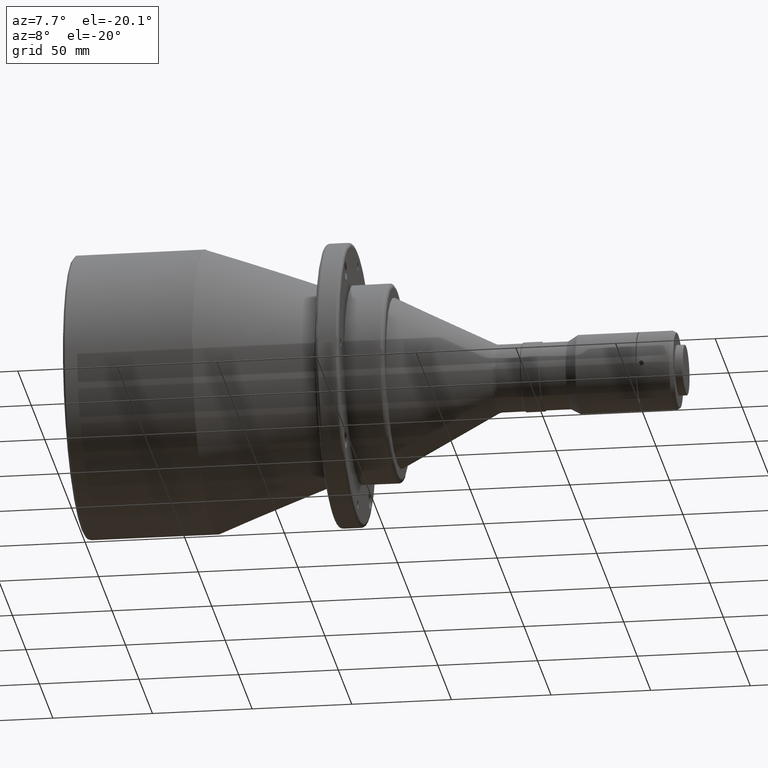
[diagram: clean part render]
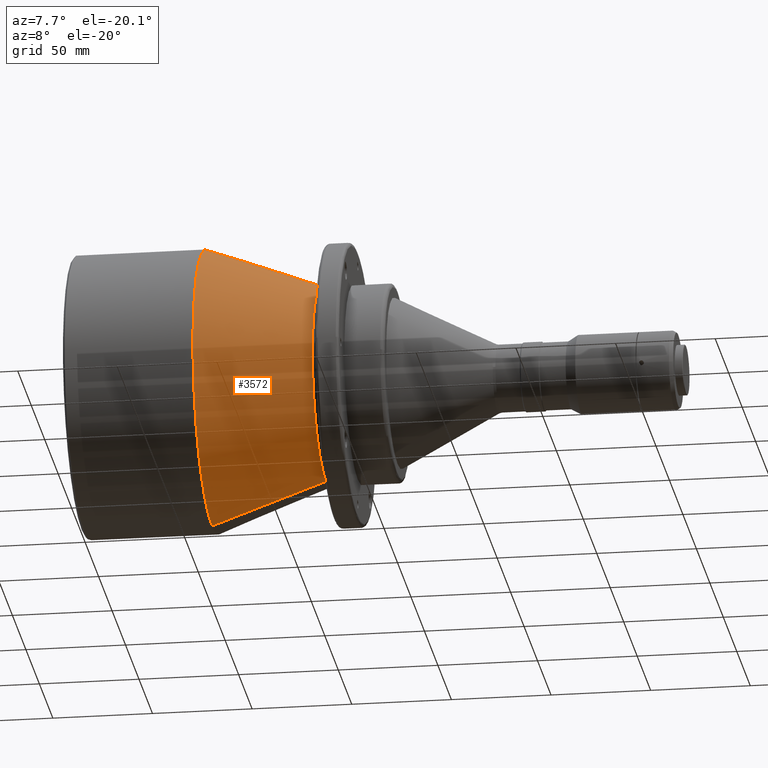
[diagram: same view with one face highlighted and labeled with its STEP entity id]
A machine part, auxiliary view. The second image highlights one B-rep face of the part: STEP entity #3572.
In plain terms, the highlighted conical surface has half-angle 20 deg.
Its self-contained STEP definition (entity closure, byte-faithful):
#125 = DIRECTION ( 'NONE',  ( 0.0000000000000000000, 0.0000000000000000000, 1.000000000000000000 ) ) ;
#211 = CIRCLE ( 'NONE', #3698, 50.14671139235364400 ) ;
#226 = DIRECTION ( 'NONE',  ( 1.000000000000000000, -0.0000000000000000000, -0.0000000000000000000 ) ) ;
#268 = VECTOR ( 'NONE', #1292, 1000.000000000000100 ) ;
#300 = CARTESIAN_POINT ( 'NONE',  ( -29.17606042959911200, -50.14671139256908100, -1.500951723251070900E-009 ) ) ;
#366 = AXIS2_PLACEMENT_3D ( 'NONE', #870, #226, #4215 ) ;
#402 = ORIENTED_EDGE ( 'NONE', *, *, #3135, .T. ) ;
#409 = CARTESIAN_POINT ( 'NONE',  ( -29.17606043000009600, 6.141200959520360200E-015, -50.14671139300003900 ) ) ;
#422 = VERTEX_POINT ( 'NONE', #1890 ) ;
#438 = LINE ( 'NONE', #1911, #268 ) ;
#629 = EDGE_CURVE ( 'NONE', #3713, #1629, #3438, .T. ) ;
#634 = VERTEX_POINT ( 'NONE', #300 ) ;
#735 = CARTESIAN_POINT ( 'NONE',  ( -29.17606043000000300, 0.0000000000000000000, 50.14671139300000400 ) ) ;
#852 = CIRCLE ( 'NONE', #366, 50.14671139300000400 ) ;
#870 = CARTESIAN_POINT ( 'NONE',  ( -29.17606043000009600, 0.0000000000000000000, 0.0000000000000000000 ) ) ;
#976 = AXIS2_PLACEMENT_3D ( 'NONE', #2141, #2172, #125 ) ;
#1048 = DIRECTION ( 'NONE',  ( 1.369395765128306200E-015, -1.000000000000000000, 0.0000000000000000000 ) ) ;
#1292 = DIRECTION ( 'NONE',  ( -0.9396926207857662100, 4.188538737681779200E-017, -0.3420201433260595100 ) ) ;
#1491 = CARTESIAN_POINT ( 'NONE',  ( -86.30430683700008400, 0.0000000000000000000, 0.0000000000000000000 ) ) ;
#1512 = ORIENTED_EDGE ( 'NONE', *, *, #2459, .F. ) ;
#1537 = FACE_OUTER_BOUND ( 'NONE', #2402, .T. ) ;
#1553 = ORIENTED_EDGE ( 'NONE', *, *, #3650, .F. ) ;
#1629 = VERTEX_POINT ( 'NONE', #1773 ) ;
#1741 = VECTOR ( 'NONE', #3069, 999.9999999999998900 ) ;
#1765 = CARTESIAN_POINT ( 'NONE',  ( -86.30430683700008400, 0.0000000000000000000, 0.0000000000000000000 ) ) ;
#1773 = CARTESIAN_POINT ( 'NONE',  ( -86.30430683750553600, -70.93969262082718800, -3.184966200029307500E-009 ) ) ;
#1886 = DIRECTION ( 'NONE',  ( -1.000000000000000000, 0.0000000000000000000, 0.0000000000000000000 ) ) ;
#1890 = CARTESIAN_POINT ( 'NONE',  ( -29.17606042939871000, 0.0000000000000000000, 50.14671139278115000 ) ) ;
#1911 = CARTESIAN_POINT ( 'NONE',  ( -29.17606043000000300, 6.141200959520356300E-015, -50.14671139300000400 ) ) ;
#2141 = CARTESIAN_POINT ( 'NONE',  ( -29.17606043000000300, 0.0000000000000000000, 0.0000000000000000000 ) ) ;
#2172 = DIRECTION ( 'NONE',  ( -1.000000000000000000, 0.0000000000000000000, 3.459296587530478900E-017 ) ) ;
#2402 = EDGE_LOOP ( 'NONE', ( #1512, #1553, #402, #3517, #2460, #3209 ) ) ;
#2459 = EDGE_CURVE ( 'NONE', #4243, #3713, #438, .T. ) ;
#2460 = ORIENTED_EDGE ( 'NONE', *, *, #2764, .F. ) ;
#2524 = CARTESIAN_POINT ( 'NONE',  ( -86.30430683700008400, 8.687606750080484900E-015, -70.93969262100004900 ) ) ;
#2764 = EDGE_CURVE ( 'NONE', #1629, #4115, #3834, .T. ) ;
#2806 = DIRECTION ( 'NONE',  ( 1.369395765128306200E-015, -1.000000000000000000, 0.0000000000000000000 ) ) ;
#3069 = DIRECTION ( 'NONE',  ( -0.9396926207857662100, 0.0000000000000000000, 0.3420201433260596200 ) ) ;
#3135 = EDGE_CURVE ( 'NONE', #634, #422, #211, .T. ) ;
#3209 = ORIENTED_EDGE ( 'NONE', *, *, #629, .F. ) ;
#3398 = AXIS2_PLACEMENT_3D ( 'NONE', #1491, #4165, #2806 ) ;
#3401 = CARTESIAN_POINT ( 'NONE',  ( -86.30430683700008400, 0.0000000000000000000, 70.93969262100006300 ) ) ;
#3420 = EDGE_CURVE ( 'NONE', #422, #4115, #4202, .T. ) ;
#3438 = CIRCLE ( 'NONE', #3604, 70.93969262100003400 ) ;
#3441 = DIRECTION ( 'NONE',  ( -1.000000000000000000, 0.0000000000000000000, 0.0000000000000000000 ) ) ;
#3517 = ORIENTED_EDGE ( 'NONE', *, *, #3420, .T. ) ;
#3525 = CONICAL_SURFACE ( 'NONE', #976, 50.14671139300000400, 0.3490658503992818400 ) ;
#3572 = ADVANCED_FACE ( 'NONE', ( #1537 ), #3525, .T. ) ;
#3604 = AXIS2_PLACEMENT_3D ( 'NONE', #1765, #3441, #1048 ) ;
#3650 = EDGE_CURVE ( 'NONE', #634, #4243, #852, .T. ) ;
#3698 = AXIS2_PLACEMENT_3D ( 'NONE', #3946, #1886, #4249 ) ;
#3713 = VERTEX_POINT ( 'NONE', #2524 ) ;
#3834 = CIRCLE ( 'NONE', #3398, 70.93969262100003400 ) ;
#3946 = CARTESIAN_POINT ( 'NONE',  ( -29.17606042939871000, 0.0000000000000000000, 0.0000000000000000000 ) ) ;
#4115 = VERTEX_POINT ( 'NONE', #3401 ) ;
#4165 = DIRECTION ( 'NONE',  ( -1.000000000000000000, 0.0000000000000000000, 0.0000000000000000000 ) ) ;
#4202 = LINE ( 'NONE', #735, #1741 ) ;
#4215 = DIRECTION ( 'NONE',  ( 1.798834225515849300E-015, -1.000000000000000000, 0.0000000000000000000 ) ) ;
#4243 = VERTEX_POINT ( 'NONE', #409 ) ;
#4249 = DIRECTION ( 'NONE',  ( 0.0000000000000000000, 0.0000000000000000000, 1.000000000000000000 ) ) ;